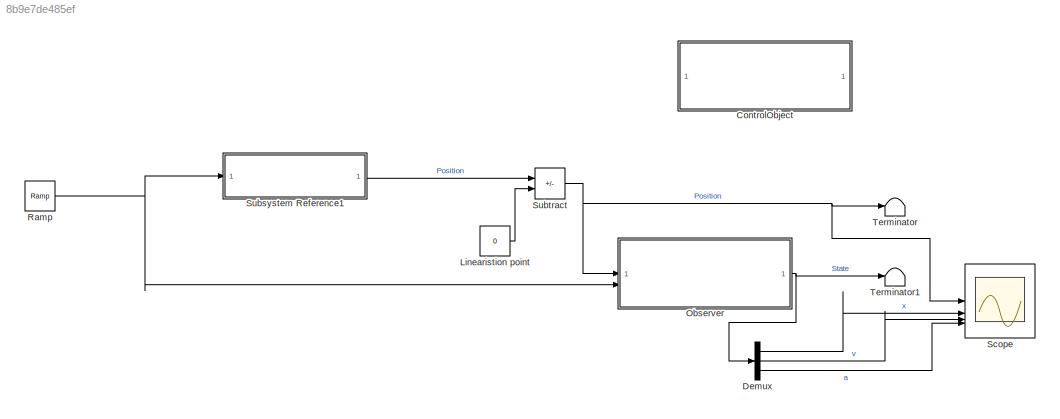
MODEL slx_8b9e7de485ef
KIND model
CONFIG AbsTol = auto
CONFIG EnableMultiTasking = off
CONFIG FixedStep = auto
CONFIG MaxStep = 0.01
CONFIG MinStep = auto
CONFIG RelTol = 1e-3
CONFIG SampleTimeConstraint = Unconstrained
CONFIG SolverName = VariableStepAuto
CONFIG StartTime = 0.0
CONFIG StopTime = 1000
BLOCK [SubSystem] ControlObject
  Commented = on
  ReferencedSubsystem = testSubject
BLOCK [Demux] Demux
  Outputs = 3
BLOCK [Constant] Linearistion point
  Value = 0
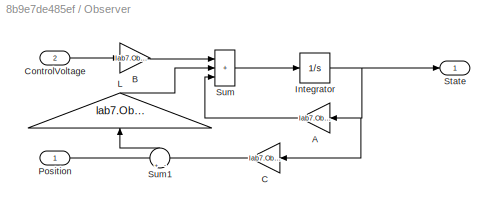
BLOCK [SubSystem] Observer
BLOCK [Gain] Observer/A
  Gain = lab7.Observer.A
  Multiplication = Matrix(K*u)
BLOCK [Gain] Observer/B
  Gain = lab7.Observer.B
  Multiplication = Matrix(K*u)
BLOCK [Gain] Observer/C
  Gain = lab7.Observer.C
  Multiplication = Matrix(K*u)
BLOCK [Inport] Observer/ControlVoltage
  Port = 2
BLOCK [Integrator] Observer/Integrator
BLOCK [Gain] Observer/L
  Gain = lab7.Observer.L
  Multiplication = Matrix(K*u)
  NameLocation = right
BLOCK [Inport] Observer/Position
BLOCK [Outport] Observer/State
BLOCK [Sum] Observer/Sum
  IconShape = rectangular
  Inputs = +++
BLOCK [Sum] Observer/Sum1
  Inputs = +|-
  NameLocation = right
BLOCK [Reference] Ramp  REF=simulink/Sources/Ramp
  SourceBlock = simulink/Sources/Ramp
  SourceType = Ramp
BLOCK [Scope] Scope
  Floating = off
  NumInputPorts = 4
  ScopeSpecificationString = Simulink.scopes.TimeScopeBlockCfg('CurrentConfiguration', extmgr.ConfigurationSet(extmgr.Configuration('Core','General UI',true,'FigureColor',[1 1 1]),extmgr.Configuration('Core','Source UI',true),extmgr.Configuration('Sources','WiredSimulink',true),extmgr.Configuration('Visuals','Time Domain',true,'SerializedDisplays',{struct('MinYLimReal','-624.35244','MaxYLimReal','5619.17193','YLabelReal','','...<+5735ch>
BLOCK [SubSystem] Subsystem Reference1
  ReferencedSubsystem = dz1_model
BLOCK [Sum] Subtract
  IconShape = rectangular
  Inputs = +-
BLOCK [Terminator] Terminator
BLOCK [Terminator] Terminator1
LINE Demux:1 -> Scope:2
LINE Demux:2 -> Scope:3
LINE Demux:3 -> Scope:4
LINE Linearistion point:1 -> Subtract:2
LINE Observer/A:1 -> Observer/Sum:3
LINE Observer/B:1 -> Observer/Sum:1
LINE Observer/C:1 -> Observer/Sum1:2
LINE Observer/ControlVoltage:1 -> Observer/B:1
NET Observer/Integrator:1 -> Observer/A:1, Observer/C:1, Observer/State:1
LINE Observer/L:1 -> Observer/Sum:2
LINE Observer/Position:1 -> Observer/Sum1:1
LINE Observer/Sum1:1 -> Observer/L:1
LINE Observer/Sum:1 -> Observer/Integrator:1
NET Observer:1 -> Demux:1, Terminator1:1
NET Ramp:1 -> Observer:2, Subsystem Reference1:1
LINE Subsystem Reference1:1 -> Subtract:1
NET Subtract:1 -> Observer:1, Scope:1, Terminator:1
note: NET lines group one-source signal fan-out (src -> all destinations, sorted); 1:1 wires keep LINE
